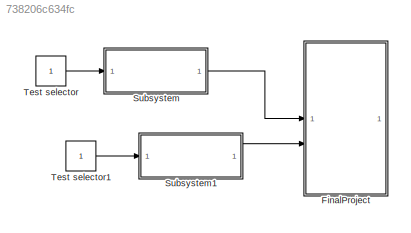
MODEL slx_738206c634fc
KIND model
CONFIG AbsTol = auto
CONFIG EnableMultiTasking = off
CONFIG FixedStep = auto
CONFIG MaxStep = auto
CONFIG MinStep = auto
CONFIG RelTol = 1e-3
CONFIG SampleTimeConstraint = Unconstrained
CONFIG SolverName = ode1be
CONFIG StartTime = 0.0
CONFIG StopTime = 10
BLOCK [ModelReference] FinalProject
  ModelNameDialog = FinalProject
  ModelReferenceVersion = 1.11
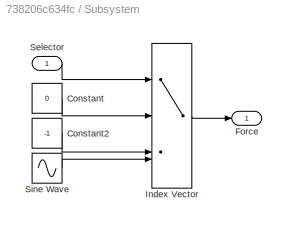
BLOCK [SubSystem] Subsystem
BLOCK [Constant] Subsystem/Constant
  Value = 0
BLOCK [Constant] Subsystem/Constant2
  Value = -1
BLOCK [Outport] Subsystem/Force
BLOCK [MultiPortSwitch] Subsystem/Index Vector
  InputSameDT = off
  SaturateOnIntegerOverflow = off
BLOCK [Inport] Subsystem/Selector
  NameLocation = top
BLOCK [Sin] Subsystem/Sine Wave
  Frequency = 10
  SampleTime = 0
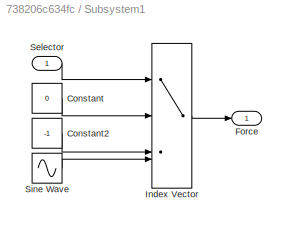
BLOCK [SubSystem] Subsystem1
BLOCK [Constant] Subsystem1/Constant
  Value = 0
BLOCK [Constant] Subsystem1/Constant2
  Value = -1
BLOCK [Outport] Subsystem1/Force
BLOCK [MultiPortSwitch] Subsystem1/Index Vector
  InputSameDT = off
  SaturateOnIntegerOverflow = off
BLOCK [Inport] Subsystem1/Selector
  NameLocation = top
BLOCK [Sin] Subsystem1/Sine Wave
  Frequency = 10
  SampleTime = 0
BLOCK [Constant] Test selector
BLOCK [Constant] Test selector1
LINE Subsystem/Constant2:1 -> Subsystem/Index Vector:3
LINE Subsystem/Constant:1 -> Subsystem/Index Vector:2
LINE Subsystem/Index Vector:1 -> Subsystem/Force:1
LINE Subsystem/Selector:1 -> Subsystem/Index Vector:1
LINE Subsystem/Sine Wave:1 -> Subsystem/Index Vector:4
LINE Subsystem1/Constant2:1 -> Subsystem1/Index Vector:3
LINE Subsystem1/Constant:1 -> Subsystem1/Index Vector:2
LINE Subsystem1/Index Vector:1 -> Subsystem1/Force:1
LINE Subsystem1/Selector:1 -> Subsystem1/Index Vector:1
LINE Subsystem1/Sine Wave:1 -> Subsystem1/Index Vector:4
LINE Subsystem1:1 -> FinalProject:2
LINE Subsystem:1 -> FinalProject:1
LINE Test selector1:1 -> Subsystem1:1
LINE Test selector:1 -> Subsystem:1
